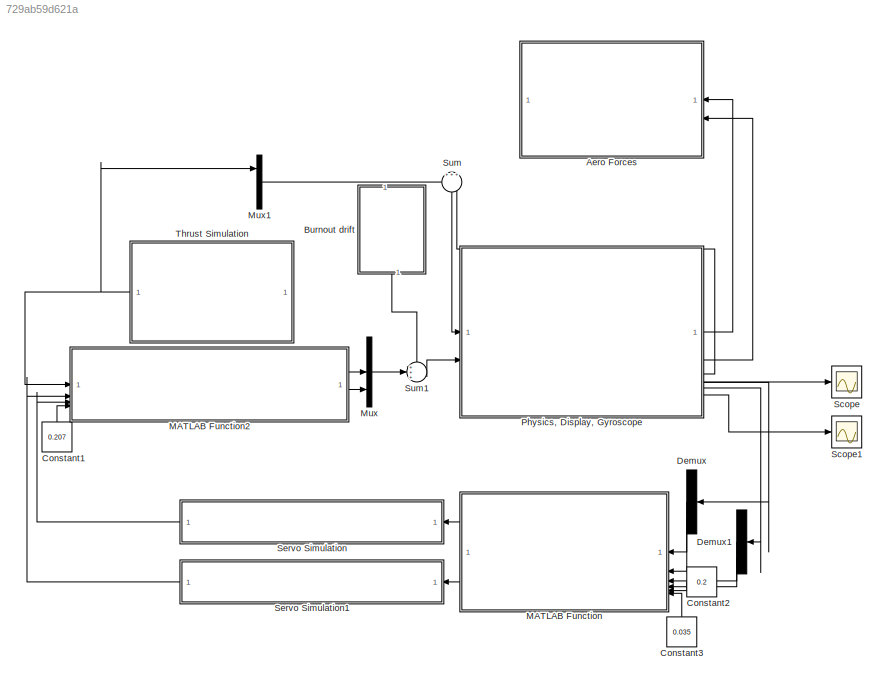
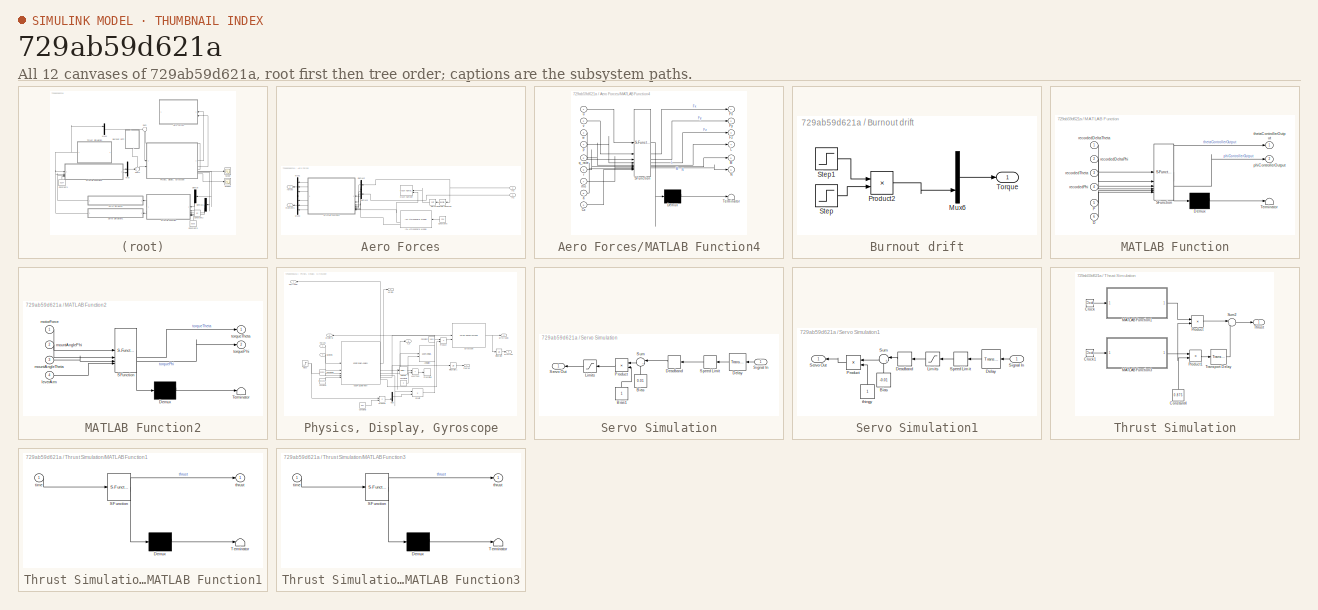
[diagram: thumbnail index - all 12 canvases of the model, root first then tree order]
MODEL slx_729ab59d621a
KIND model
CONFIG AbsTol = auto
CONFIG EnableMultiTasking = off
CONFIG FixedStep = 0.01
CONFIG MaxStep = auto
CONFIG MinStep = auto
CONFIG RelTol = 1e-3
CONFIG SampleTimeConstraint = Unconstrained
CONFIG SolverName = FixedStepAuto
CONFIG StartTime = 0.0
CONFIG StopTime = 15
BLOCK [SubSystem] Aero Forces
  NameLocation = top
BLOCK [Constant] Aero Forces/Constant5
  NameLocation = top
  Value = 256
BLOCK [Demux] Aero Forces/Demux2
  NameLocation = top
  Outputs = 3
BLOCK [Demux] Aero Forces/Demux3
  NameLocation = top
  Outputs = 3
BLOCK [Reference] Aero Forces/ISA Atmosphere Model  REF=aerolibatmos2/ISA Atmosphere Model
  NameLocation = top
  SourceBlock = aerolibatmos2/ISA Atmosphere Model
  SourceType = International Standard Atmosphere Model
BLOCK [Inport] Aero Forces/In1
  NameLocation = top
BLOCK [Inport] Aero Forces/In2
  NameLocation = top
  Port = 2
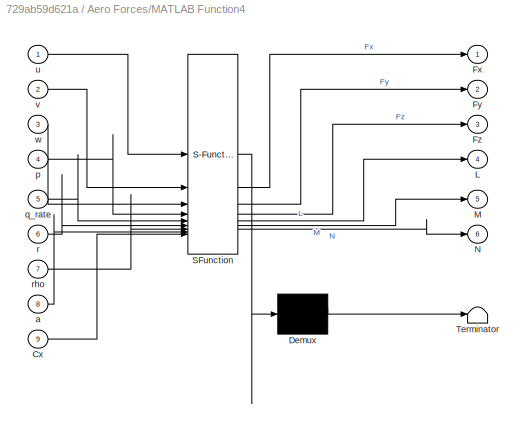
BLOCK [SubSystem] Aero Forces/MATLAB Function4
  ErrorFcn = Stateflow.Translate.translate
  NameLocation = top
  PermitHierarchicalResolution = ExplicitOnly
  SFBlockType = MATLAB Function
  TreatAsAtomicUnit = on
BLOCK [Demux] Aero Forces/MATLAB Function4/ Demux 
  Outputs = 1
BLOCK [S-Function] Aero Forces/MATLAB Function4/ SFunction 
  EnableBusSupport = on
  FunctionName = sf_sfun
  PortCounts = [9 7]
  SFcnIsStateOwnerBlock = off
  SFunctionDeploymentMode = off
  Tag = Stateflow S-Function 5
BLOCK [Terminator] Aero Forces/MATLAB Function4/ Terminator 
BLOCK [Inport] Aero Forces/MATLAB Function4/Cx
  Port = 9
BLOCK [Outport] Aero Forces/MATLAB Function4/Fx
BLOCK [Outport] Aero Forces/MATLAB Function4/Fy
  Port = 2
BLOCK [Outport] Aero Forces/MATLAB Function4/Fz
  Port = 3
BLOCK [Outport] Aero Forces/MATLAB Function4/L
  Port = 4
BLOCK [Outport] Aero Forces/MATLAB Function4/M
  Port = 5
BLOCK [Outport] Aero Forces/MATLAB Function4/N
  Port = 6
BLOCK [Inport] Aero Forces/MATLAB Function4/a
  Port = 8
BLOCK [Inport] Aero Forces/MATLAB Function4/p
  Port = 4
BLOCK [Inport] Aero Forces/MATLAB Function4/q_rate
  Port = 5
BLOCK [Inport] Aero Forces/MATLAB Function4/r
  Port = 6
BLOCK [Inport] Aero Forces/MATLAB Function4/rho
  Port = 7
BLOCK [Inport] Aero Forces/MATLAB Function4/u
BLOCK [Inport] Aero Forces/MATLAB Function4/v
  Port = 2
BLOCK [Inport] Aero Forces/MATLAB Function4/w
  Port = 3
BLOCK [Reference] Aero Forces/Mach Number  REF=aerolibasang/Mach Number
  NameLocation = top
  SourceBlock = aerolibasang/Mach Number
  SourceType = Mach Number
BLOCK [Math] Aero Forces/Magnitude Squared
  NameLocation = top
  Operator = magnitude^2
BLOCK [Mux] Aero Forces/Mux1
  DisplayOption = bar
  Inputs = 3
  NameLocation = top
BLOCK [Mux] Aero Forces/Mux3
  DisplayOption = bar
  Inputs = 3
  NameLocation = top
BLOCK [Sqrt] Aero Forces/Sqrt
  NameLocation = top
BLOCK [Outport] Aero Forces/forces
  Port = 2
BLOCK [Outport] Aero Forces/moments
BLOCK [SubSystem] Burnout drift
  NameLocation = left
BLOCK [Mux] Burnout drift/Mux6
  DisplayOption = bar
  Inputs = 3
BLOCK [Product] Burnout drift/Product2
BLOCK [Step] Burnout drift/Step
  After = 0.075
  SampleTime = 0
  Time = 2.9
BLOCK [Step] Burnout drift/Step1
  After = 0
  Before = 1
  SampleTime = 0
  Time = 3.2
BLOCK [Outport] Burnout drift/Torque
BLOCK [Constant] Constant1
  NameLocation = right
  Value = 0.207
BLOCK [Constant] Constant2
  NameLocation = top
  Value = 0.2
BLOCK [Constant] Constant3
  NameLocation = right
  Value = 0.035
BLOCK [Demux] Demux
  NameLocation = top
  Outputs = 3
BLOCK [Demux] Demux1
  NameLocation = top
  Outputs = 3
BLOCK [SubSystem] MATLAB Function
  ErrorFcn = Stateflow.Translate.translate
  NameLocation = top
  PermitHierarchicalResolution = ExplicitOnly
  SFBlockType = MATLAB Function
  TreatAsAtomicUnit = on
BLOCK [Demux] MATLAB Function/ Demux 
  Outputs = 1
BLOCK [S-Function] MATLAB Function/ SFunction 
  EnableBusSupport = on
  FunctionName = sf_sfun
  PortCounts = [6 3]
  SFcnIsStateOwnerBlock = off
  SFunctionDeploymentMode = off
  Tag = Stateflow S-Function 2
BLOCK [Terminator] MATLAB Function/ Terminator 
BLOCK [Inport] MATLAB Function/D
  Port = 6
BLOCK [Inport] MATLAB Function/P
  Port = 5
BLOCK [Outport] MATLAB Function/phiControllerOutput
  Port = 2
BLOCK [Inport] MATLAB Function/recordedDeltaPhi
  Port = 2
BLOCK [Inport] MATLAB Function/recordedDeltaTheta
BLOCK [Inport] MATLAB Function/recordedPhi
  Port = 4
BLOCK [Inport] MATLAB Function/recordedTheta
  Port = 3
BLOCK [Outport] MATLAB Function/thetaControllerOutput
BLOCK [SubSystem] MATLAB Function2
  ErrorFcn = Stateflow.Translate.translate
  PermitHierarchicalResolution = ExplicitOnly
  SFBlockType = MATLAB Function
  TreatAsAtomicUnit = on
BLOCK [Demux] MATLAB Function2/ Demux 
  Outputs = 1
BLOCK [S-Function] MATLAB Function2/ SFunction 
  EnableBusSupport = on
  FunctionName = sf_sfun
  PortCounts = [4 3]
  SFcnIsStateOwnerBlock = off
  SFunctionDeploymentMode = off
  Tag = Stateflow S-Function 3
BLOCK [Terminator] MATLAB Function2/ Terminator 
BLOCK [Inport] MATLAB Function2/leverArm
  Port = 4
BLOCK [Inport] MATLAB Function2/motorForce
BLOCK [Inport] MATLAB Function2/mountAnglePhi
  Port = 2
BLOCK [Inport] MATLAB Function2/mountAngleTheta
  Port = 3
BLOCK [Outport] MATLAB Function2/torquePhi
  Port = 2
BLOCK [Outport] MATLAB Function2/torqueTheta
BLOCK [Mux] Mux
  DisplayOption = bar
  Inputs = 3
BLOCK [Mux] Mux1
  DisplayOption = bar
  Inputs = 3
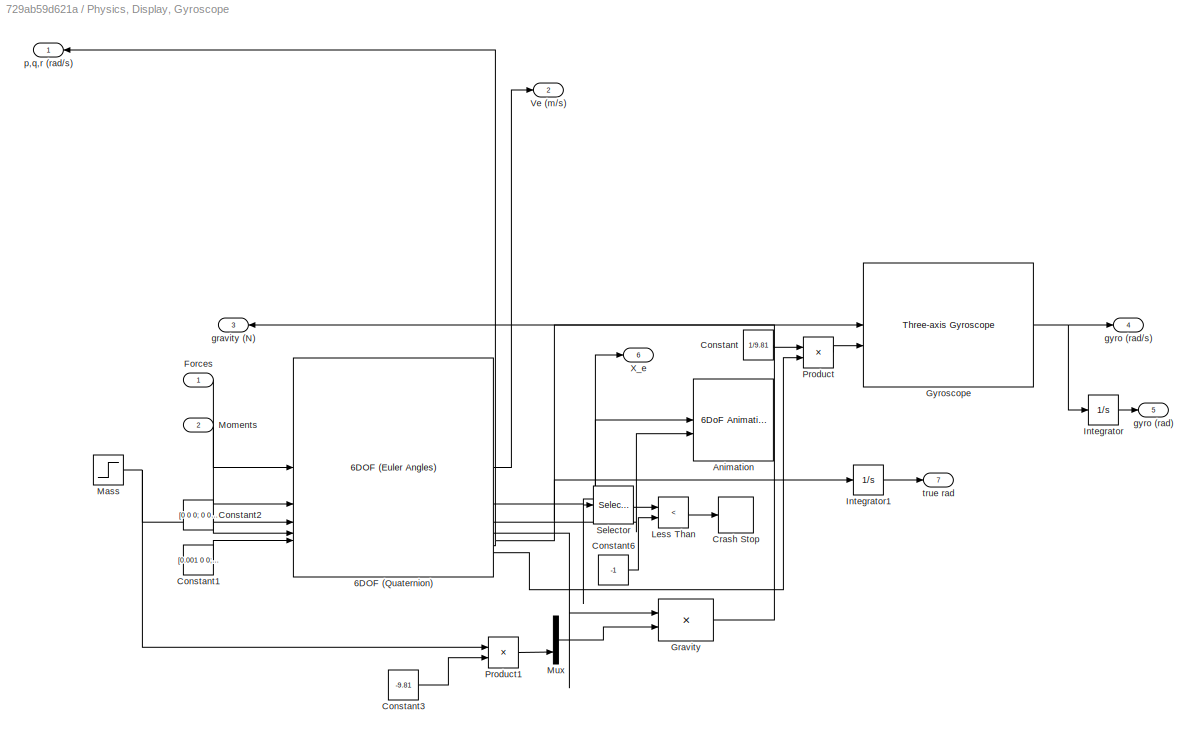
BLOCK [SubSystem] Physics, Display, Gyroscope
BLOCK [Reference] Physics, Display, Gyroscope/6DOF (Quaternion)  REF=shared6dof/6DOF (Euler Angles)
  LibrarySourceBlock = aerolib6dof2/6DOF (Quaternion)
  SourceBlock = shared6dof/6DOF (Euler Angles)
  SourceType = 6DOF EoM (Body Axis)
BLOCK [Reference] Physics, Display, Gyroscope/Animation  REF=aerolibanim/6DoF Animation
  SourceBlock = aerolibanim/6DoF Animation
  SourceType = 6DoF_Animation
BLOCK [Constant] Physics, Display, Gyroscope/Constant
  Value = 1/9.81
BLOCK [Constant] Physics, Display, Gyroscope/Constant1
  Value = [0.001 0 0; 0 0.0770783075152 0; 0 0 0.0770783075152]
BLOCK [Constant] Physics, Display, Gyroscope/Constant2
  Value = [0 0 0; 0 0 0; 0 0 0]
BLOCK [Constant] Physics, Display, Gyroscope/Constant3
  Value = -9.81
BLOCK [Constant] Physics, Display, Gyroscope/Constant6
  Value = -1
BLOCK [Stop] Physics, Display, Gyroscope/Crash Stop
BLOCK [Inport] Physics, Display, Gyroscope/Forces
BLOCK [Product] Physics, Display, Gyroscope/Gravity
  Multiplication = Matrix(*)
BLOCK [Reference] Physics, Display, Gyroscope/Gyroscope  REF=aerolibnav/Three-axis Gyroscope
  SourceBlock = aerolibnav/Three-axis Gyroscope
  SourceType = Three-axis Gyroscope
BLOCK [Integrator] Physics, Display, Gyroscope/Integrator
BLOCK [Integrator] Physics, Display, Gyroscope/Integrator1
BLOCK [RelationalOperator] Physics, Display, Gyroscope/Less Than
  InputSameDT = off
  Operator = <
  OutDataTypeStr = boolean
  RndMeth = Simplest
BLOCK [Step] Physics, Display, Gyroscope/Mass
  After = 1.963-0.09
  Before = 1.963
  SampleTime = 0
  Time = 3.4
BLOCK [Inport] Physics, Display, Gyroscope/Moments
  Port = 2
BLOCK [Mux] Physics, Display, Gyroscope/Mux
  DisplayOption = bar
  Inputs = 3
BLOCK [Product] Physics, Display, Gyroscope/Product
BLOCK [Product] Physics, Display, Gyroscope/Product1
BLOCK [Selector] Physics, Display, Gyroscope/Selector
  IndexOptions = Index vector (dialog)
  Indices = [3]
  InputPortWidth = 3
  OutputSizes = 1
BLOCK [Outport] Physics, Display, Gyroscope/Ve (m//s)
  Port = 2
BLOCK [Outport] Physics, Display, Gyroscope/X_e
  Port = 6
BLOCK [Outport] Physics, Display, Gyroscope/gravity (N)
  Port = 3
BLOCK [Outport] Physics, Display, Gyroscope/gyro (rad)
  Port = 5
BLOCK [Outport] Physics, Display, Gyroscope/gyro (rad//s)
  Port = 4
BLOCK [Outport] Physics, Display, Gyroscope/p,q,r (rad//s)
BLOCK [Outport] Physics, Display, Gyroscope/true rad
  Port = 7
BLOCK [Scope] Scope
  Floating = off
  NumInputPorts = 1
  ScopeSpecificationString = Simulink.scopes.TimeScopeBlockCfg('CurrentConfiguration', extmgr.ConfigurationSet(extmgr.Configuration('Core','General UI',true),extmgr.Configuration('Core','Source UI',true),extmgr.Configuration('Sources','WiredSimulink',true),extmgr.Configuration('Visuals','Time Domain',true,'SerializedDisplays',{struct('MinYLimReal','-5.41409','MaxYLimReal','27.58993','YLabelReal','','MinYLimMag','0.00000','Max...<+1564ch>
BLOCK [Scope] Scope1
  Floating = off
  NumInputPorts = 1
  ScopeSpecificationString = Simulink.scopes.TimeScopeBlockCfg('CurrentConfiguration', extmgr.ConfigurationSet(extmgr.Configuration('Core','General UI',true),extmgr.Configuration('Core','Source UI',true),extmgr.Configuration('Sources','WiredSimulink',true,'DataLoggingVariableName','ScopeData1'),extmgr.Configuration('Visuals','Time Domain',true,'SerializedDisplays',{struct('MinYLimReal','-0.1556','MaxYLimReal','0.18481','YLabe...<+1621ch>
BLOCK [SubSystem] Servo Simulation
  NameLocation = top
BLOCK [Constant] Servo Simulation/Bias
  NameLocation = right
  Value = 0.01
BLOCK [Constant] Servo Simulation/Bias1
  NameLocation = right
BLOCK [Backlash] Servo Simulation/Deadband
  BacklashWidth = backlash
  NameLocation = top
BLOCK [TransportDelay] Servo Simulation/Delay
  DelayTime = servo_latency
  NameLocation = top
BLOCK [Saturate] Servo Simulation/Limits
  LowerLimit = -0.0872665
  NameLocation = top
  UpperLimit = 0.0872665
BLOCK [Product] Servo Simulation/Product
  NameLocation = top
BLOCK [Outport] Servo Simulation/Servo Out
BLOCK [Inport] Servo Simulation/Signal In
BLOCK [RateLimiter] Servo Simulation/Speed Limit
  FallingSlewLimit = -rate
  NameLocation = top
  RisingSlewLimit = rate
  SampleTimeMode = inherited
BLOCK [Sum] Servo Simulation/Sum
  Inputs = |++
  NameLocation = top
BLOCK [SubSystem] Servo Simulation1
  NameLocation = top
BLOCK [Constant] Servo Simulation1/Bias
  NameLocation = right
  Value = -0.01
BLOCK [Backlash] Servo Simulation1/Deadband
  BacklashWidth = backlash
  NameLocation = top
BLOCK [TransportDelay] Servo Simulation1/Delay
  DelayTime = servo_latency
  NameLocation = top
BLOCK [Saturate] Servo Simulation1/Limits
  LowerLimit = -0.0872665
  NameLocation = top
  UpperLimit = 0.0872665
BLOCK [Product] Servo Simulation1/Product
  NameLocation = top
BLOCK [Outport] Servo Simulation1/Servo Out
BLOCK [Inport] Servo Simulation1/Signal In
BLOCK [RateLimiter] Servo Simulation1/Speed Limit
  FallingSlewLimit = -rate
  NameLocation = top
  RisingSlewLimit = rate
  SampleTimeMode = inherited
BLOCK [Sum] Servo Simulation1/Sum
  Inputs = |++
  NameLocation = top
BLOCK [Constant] Servo Simulation1/thingy
  NameLocation = right
BLOCK [Sum] Sum
  Inputs = +++
  NameLocation = left
BLOCK [Sum] Sum1
  Inputs = +++
BLOCK [SubSystem] Thrust Simulation
  NameLocation = top
BLOCK [Clock] Thrust Simulation/Clock
BLOCK [Clock] Thrust Simulation/Clock1
BLOCK [Constant] Thrust Simulation/Constant4
  NameLocation = right
  Value = 0.875
BLOCK [SubSystem] Thrust Simulation/MATLAB Function1
  ErrorFcn = Stateflow.Translate.translate
  PermitHierarchicalResolution = ExplicitOnly
  SFBlockType = MATLAB Function
  TreatAsAtomicUnit = on
BLOCK [Demux] Thrust Simulation/MATLAB Function1/ Demux 
  Outputs = 1
BLOCK [S-Function] Thrust Simulation/MATLAB Function1/ SFunction 
  EnableBusSupport = on
  FunctionName = sf_sfun
  PortCounts = [1 2]
  SFcnIsStateOwnerBlock = off
  SFunctionDeploymentMode = off
  Tag = Stateflow S-Function 1
BLOCK [Terminator] Thrust Simulation/MATLAB Function1/ Terminator 
BLOCK [Outport] Thrust Simulation/MATLAB Function1/thrust
BLOCK [Inport] Thrust Simulation/MATLAB Function1/time
BLOCK [SubSystem] Thrust Simulation/MATLAB Function3
  ErrorFcn = Stateflow.Translate.translate
  PermitHierarchicalResolution = ExplicitOnly
  SFBlockType = MATLAB Function
  TreatAsAtomicUnit = on
BLOCK [Demux] Thrust Simulation/MATLAB Function3/ Demux 
  Outputs = 1
BLOCK [S-Function] Thrust Simulation/MATLAB Function3/ SFunction 
  EnableBusSupport = on
  FunctionName = sf_sfun
  PortCounts = [1 2]
  SFcnIsStateOwnerBlock = off
  SFunctionDeploymentMode = off
  Tag = Stateflow S-Function 4
BLOCK [Terminator] Thrust Simulation/MATLAB Function3/ Terminator 
BLOCK [Outport] Thrust Simulation/MATLAB Function3/thrust
BLOCK [Inport] Thrust Simulation/MATLAB Function3/time
BLOCK [Product] Thrust Simulation/Product
BLOCK [Product] Thrust Simulation/Product1
BLOCK [Sum] Thrust Simulation/Sum2
  Inputs = |++
BLOCK [Outport] Thrust Simulation/Thrust
BLOCK [TransportDelay] Thrust Simulation/Transport Delay
  DelayTime = 4.7
LINE Aero Forces/Constant5:1 -> Aero Forces/ISA Atmosphere Model:1
LINE Aero Forces/Demux2:1 -> Aero Forces/MATLAB Function4:1
LINE Aero Forces/Demux2:2 -> Aero Forces/MATLAB Function4:2
LINE Aero Forces/Demux2:3 -> Aero Forces/MATLAB Function4:3
LINE Aero Forces/Demux3:1 -> Aero Forces/MATLAB Function4:4
LINE Aero Forces/Demux3:2 -> Aero Forces/MATLAB Function4:5
LINE Aero Forces/Demux3:3 -> Aero Forces/MATLAB Function4:6
NET Aero Forces/ISA Atmosphere Model:2 -> Aero Forces/MATLAB Function4:8, Aero Forces/Mach Number:2
LINE Aero Forces/ISA Atmosphere Model:4 -> Aero Forces/MATLAB Function4:7
LINE Aero Forces/In1:1 -> Aero Forces/Demux3:1
NET Aero Forces/In2:1 -> Aero Forces/Demux2:1, Aero Forces/Magnitude Squared:1
LINE Aero Forces/MATLAB Function4:1 -> Aero Forces/Mux1:1
LINE Aero Forces/MATLAB Function4:2 -> Aero Forces/Mux1:2
LINE Aero Forces/MATLAB Function4:3 -> Aero Forces/Mux1:3
LINE Aero Forces/MATLAB Function4:4 -> Aero Forces/Mux3:1
LINE Aero Forces/MATLAB Function4:5 -> Aero Forces/Mux3:2
LINE Aero Forces/MATLAB Function4:6 -> Aero Forces/Mux3:3
LINE Aero Forces/Magnitude Squared:1 -> Aero Forces/Sqrt:1
LINE Aero Forces/Mux1:1 -> Aero Forces/forces:1
LINE Aero Forces/Mux3:1 -> Aero Forces/moments:1
LINE Aero Forces/Sqrt:1 -> Aero Forces/Mach Number:1
LINE Burnout drift/Mux6:1 -> Burnout drift/Torque:1
LINE Burnout drift/Product2:1 -> Burnout drift/Mux6:3
LINE Burnout drift/Step1:1 -> Burnout drift/Product2:1
LINE Burnout drift/Step:1 -> Burnout drift/Product2:2
LINE Burnout drift:1 -> Sum1:1
LINE Constant1:1 -> MATLAB Function2:4
LINE Constant2:1 -> MATLAB Function:5
LINE Constant3:1 -> MATLAB Function:6
LINE Demux1:2 -> MATLAB Function:3
LINE Demux1:3 -> MATLAB Function:4
LINE Demux:2 -> MATLAB Function:1
LINE Demux:3 -> MATLAB Function:2
LINE MATLAB Function2:1 -> Mux:2
LINE MATLAB Function2:2 -> Mux:3
LINE MATLAB Function:1 -> Servo Simulation:1
LINE MATLAB Function:2 -> Servo Simulation1:1
LINE Mux1:1 -> Sum:1
LINE Mux:1 -> Sum1:2
LINE Physics, Display, Gyroscope/6DOF (Quaternion):1 -> Physics, Display, Gyroscope/Ve (m//s):1
NET Physics, Display, Gyroscope/6DOF (Quaternion):2 -> Physics, Display, Gyroscope/Animation:1, Physics, Display, Gyroscope/Selector:1, Physics, Display, Gyroscope/X_e:1
LINE Physics, Display, Gyroscope/6DOF (Quaternion):3 -> Physics, Display, Gyroscope/Animation:2
LINE Physics, Display, Gyroscope/6DOF (Quaternion):4 -> Physics, Display, Gyroscope/Gravity:1
NET Physics, Display, Gyroscope/6DOF (Quaternion):6 -> Physics, Display, Gyroscope/Gyroscope:1, Physics, Display, Gyroscope/Integrator1:1, Physics, Display, Gyroscope/p,q,r (rad//s):1
LINE Physics, Display, Gyroscope/6DOF (Quaternion):8 -> Physics, Display, Gyroscope/Product:2
LINE Physics, Display, Gyroscope/Constant1:1 -> Physics, Display, Gyroscope/6DOF (Quaternion):5
LINE Physics, Display, Gyroscope/Constant2:1 -> Physics, Display, Gyroscope/6DOF (Quaternion):4
LINE Physics, Display, Gyroscope/Constant3:1 -> Physics, Display, Gyroscope/Product1:2
LINE Physics, Display, Gyroscope/Constant6:1 -> Physics, Display, Gyroscope/Less Than:2
LINE Physics, Display, Gyroscope/Constant:1 -> Physics, Display, Gyroscope/Product:1
LINE Physics, Display, Gyroscope/Forces:1 -> Physics, Display, Gyroscope/6DOF (Quaternion):1
LINE Physics, Display, Gyroscope/Gravity:1 -> Physics, Display, Gyroscope/gravity (N):1
NET Physics, Display, Gyroscope/Gyroscope:1 -> Physics, Display, Gyroscope/Integrator:1, Physics, Display, Gyroscope/gyro (rad//s):1
LINE Physics, Display, Gyroscope/Integrator1:1 -> Physics, Display, Gyroscope/true rad:1
LINE Physics, Display, Gyroscope/Integrator:1 -> Physics, Display, Gyroscope/gyro (rad):1
LINE Physics, Display, Gyroscope/Less Than:1 -> Physics, Display, Gyroscope/Crash Stop:1
NET Physics, Display, Gyroscope/Mass:1 -> Physics, Display, Gyroscope/6DOF (Quaternion):3, Physics, Display, Gyroscope/Product1:1
LINE Physics, Display, Gyroscope/Moments:1 -> Physics, Display, Gyroscope/6DOF (Quaternion):2
LINE Physics, Display, Gyroscope/Mux:1 -> Physics, Display, Gyroscope/Gravity:2
LINE Physics, Display, Gyroscope/Product1:1 -> Physics, Display, Gyroscope/Mux:3
LINE Physics, Display, Gyroscope/Product:1 -> Physics, Display, Gyroscope/Gyroscope:2
LINE Physics, Display, Gyroscope/Selector:1 -> Physics, Display, Gyroscope/Less Than:1
LINE Physics, Display, Gyroscope:1 -> Aero Forces:1
LINE Physics, Display, Gyroscope:2 -> Aero Forces:2
LINE Physics, Display, Gyroscope:3 -> Sum:3
LINE Physics, Display, Gyroscope:4 -> Demux:1
LINE Physics, Display, Gyroscope:5 -> Demux1:1
LINE Physics, Display, Gyroscope:6 -> Scope:1
LINE Physics, Display, Gyroscope:7 -> Scope1:1
LINE Servo Simulation/Bias1:1 -> Servo Simulation/Product:2
LINE Servo Simulation/Bias:1 -> Servo Simulation/Sum:2
LINE Servo Simulation/Deadband:1 -> Servo Simulation/Sum:1
LINE Servo Simulation/Delay:1 -> Servo Simulation/Speed Limit:1
LINE Servo Simulation/Limits:1 -> Servo Simulation/Servo Out:1
LINE Servo Simulation/Product:1 -> Servo Simulation/Limits:1
LINE Servo Simulation/Signal In:1 -> Servo Simulation/Delay:1
LINE Servo Simulation/Speed Limit:1 -> Servo Simulation/Deadband:1
LINE Servo Simulation/Sum:1 -> Servo Simulation/Product:1
LINE Servo Simulation1/Bias:1 -> Servo Simulation1/Sum:2
LINE Servo Simulation1/Deadband:1 -> Servo Simulation1/Sum:1
LINE Servo Simulation1/Delay:1 -> Servo Simulation1/Speed Limit:1
LINE Servo Simulation1/Limits:1 -> Servo Simulation1/Deadband:1
LINE Servo Simulation1/Product:1 -> Servo Simulation1/Servo Out:1
LINE Servo Simulation1/Signal In:1 -> Servo Simulation1/Delay:1
LINE Servo Simulation1/Speed Limit:1 -> Servo Simulation1/Limits:1
LINE Servo Simulation1/Sum:1 -> Servo Simulation1/Product:1
LINE Servo Simulation1/thingy:1 -> Servo Simulation1/Product:2
LINE Servo Simulation1:1 -> MATLAB Function2:2
LINE Servo Simulation:1 -> MATLAB Function2:3
LINE Sum1:1 -> Physics, Display, Gyroscope:2
LINE Sum:1 -> Physics, Display, Gyroscope:1
LINE Thrust Simulation/Clock1:1 -> Thrust Simulation/MATLAB Function3:1
LINE Thrust Simulation/Clock:1 -> Thrust Simulation/MATLAB Function1:1
NET Thrust Simulation/Constant4:1 -> Thrust Simulation/Product1:2, Thrust Simulation/Product:2
LINE Thrust Simulation/MATLAB Function1:1 -> Thrust Simulation/Product:1
LINE Thrust Simulation/MATLAB Function3:1 -> Thrust Simulation/Product1:1
LINE Thrust Simulation/Product1:1 -> Thrust Simulation/Transport Delay:1
LINE Thrust Simulation/Product:1 -> Thrust Simulation/Sum2:1
LINE Thrust Simulation/Sum2:1 -> Thrust Simulation/Thrust:1
LINE Thrust Simulation/Transport Delay:1 -> Thrust Simulation/Sum2:2
NET Thrust Simulation:1 -> MATLAB Function2:1, Mux1:1
note: NET lines group one-source signal fan-out (src -> all destinations, sorted); 1:1 wires keep LINE
CHART Thrust Simulation/MATLAB Function1 states=1 transitions=1
  STATE_LABEL 'eML_blk_kernel()'
  STATE_LABEL 'SCRIPT:\nfunction thrust = Motor_Simulation(time)\n% Returns thrust in newtons for given time in seconds by interpolating the\n% engine thrust curve\n    persistent t_data f_data initialized;\n\n    % Load the engine data\n    if isempty(initialized)\n        engine_data = {\n            \'<eng-data cg="49." f="0." m="38.8" t="0."/>\';\n            \'<eng-data cg="49." f="57.631" m="38.1838" t="0.039"/>\';\n    ...<+2205ch>'
CHART MATLAB Function states=1 transitions=1
  STATE_LABEL 'eML_blk_kernel()'
  STATE_LABEL 'SCRIPT:\nfunction [thetaControllerOutput,phiControllerOutput]= PD_controller(recordedDeltaTheta,recordedDeltaPhi, recordedTheta, recordedPhi, P, D)\nthetaControllerOutput = -P * recordedTheta - D * recordedDeltaTheta;\nphiControllerOutput = -P * recordedPhi - D * recordedDeltaPhi;\nend\n\n'
CHART MATLAB Function2 states=1 transitions=1
  STATE_LABEL 'eML_blk_kernel()'
  STATE_LABEL 'SCRIPT:\nfunction [torqueTheta, torquePhi] = Mount_Angle_to_Torque(motorForce, mountAnglePhi, mountAngleTheta,leverArm)\n    torqueTheta = motorForce * leverArm * sin(mountAngleTheta);\n    torquePhi = motorForce * leverArm * sin(mountAnglePhi);\nend\n'
CHART Thrust Simulation/MATLAB Function3 states=1 transitions=1
  STATE_LABEL 'eML_blk_kernel()'
  STATE_LABEL 'SCRIPT:\nfunction thrust = Motor_Simulation(time)\n% Motor_Simulation  Return thrust [N] for given time(s) [s] by\n%                   interpolating the engine thrust curve.\n%\n% This function is fully compatible with Simulink code generation. It uses\n% robust strfind parsing and correctly handles duplicate time points.\n\n    % Declare persistent variables to store the processed thrust curve.\n    persi...<+2825ch>'
CHART Aero Forces/MATLAB Function4 states=1 transitions=1
  STATE_LABEL 'eML_blk_kernel()'
  STATE_LABEL 'SCRIPT:\nfunction [Fx,Fy,Fz,L,M,N] = AeroForcesAndMoments(u,v,w,p,q_rate,r,rho,a,Cx)\n% u,v,w    : body translational velocities [m/s]\n% p,q_rate,r : body rates [rad/s]\n% rho,a    : air density [kg/m^3], speed of sound [m/s]\n% Cx       : axial coefficient (≈ Cd at small AoA) from your lookup\n% params   : struct with fields (set once in workspace or mask):\n%   Sref   [m^2]  reference area (pi*(D/2)^2...<+3440ch>'
CHART  states=0 transitions=0
CHART  states=0 transitions=0
CHART  states=0 transitions=0
CHART  states=0 transitions=0
CHART  states=0 transitions=0
